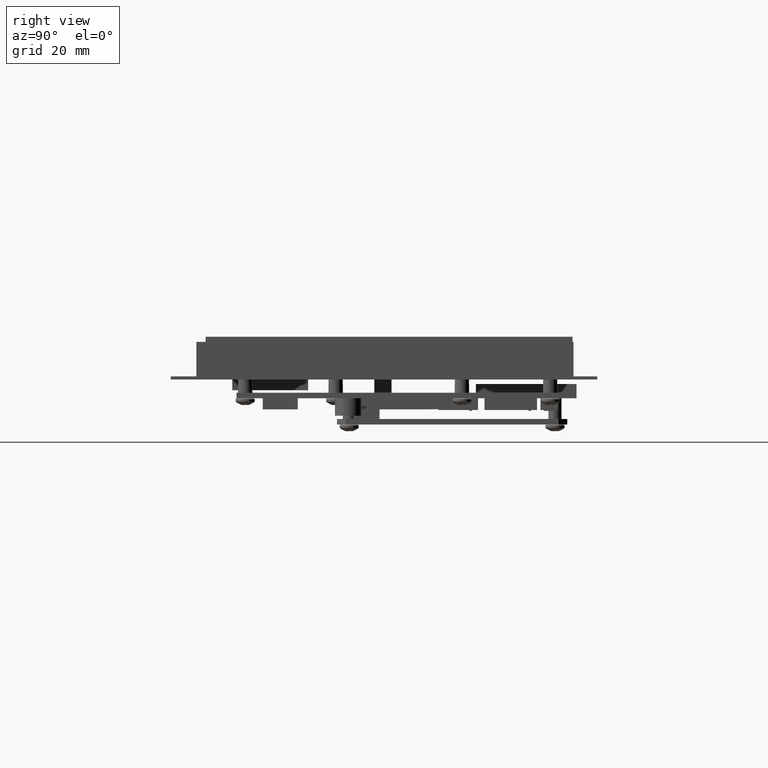
[diagram: clean part render]
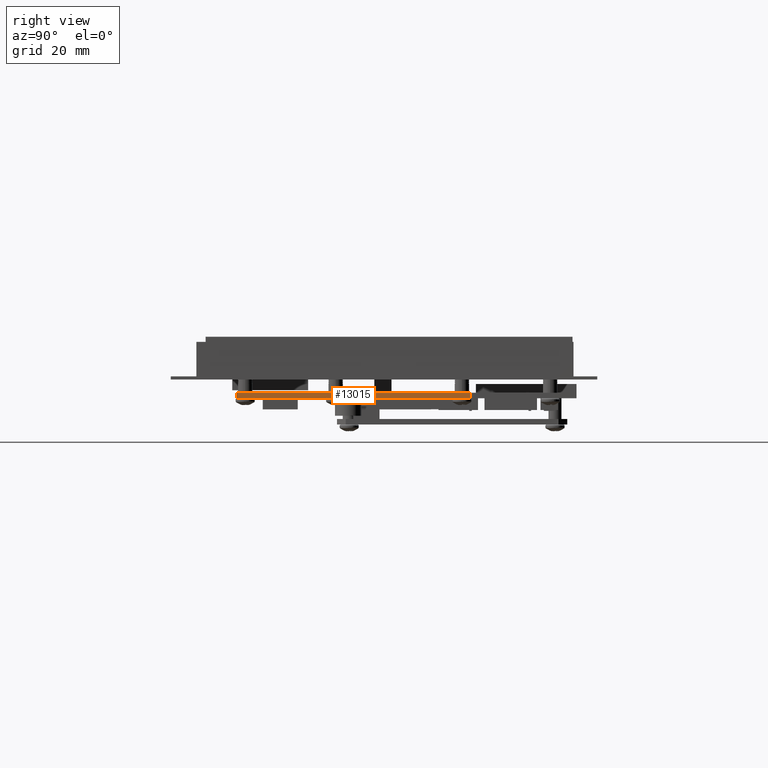
[diagram: same view with one face highlighted and labeled with its STEP entity id]
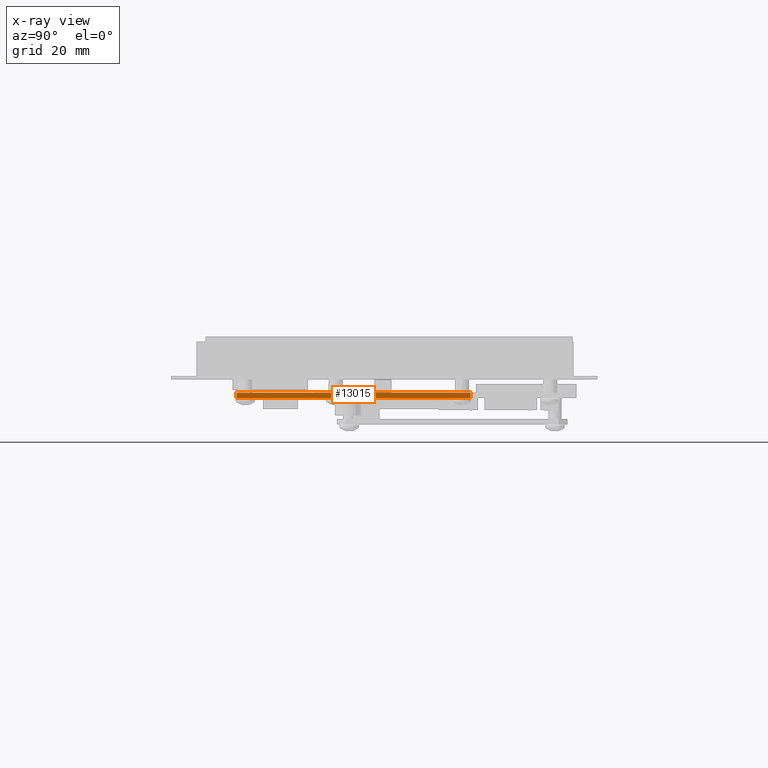
[diagram: x-ray of the same camera — body ghosted, the highlighted face saturated]
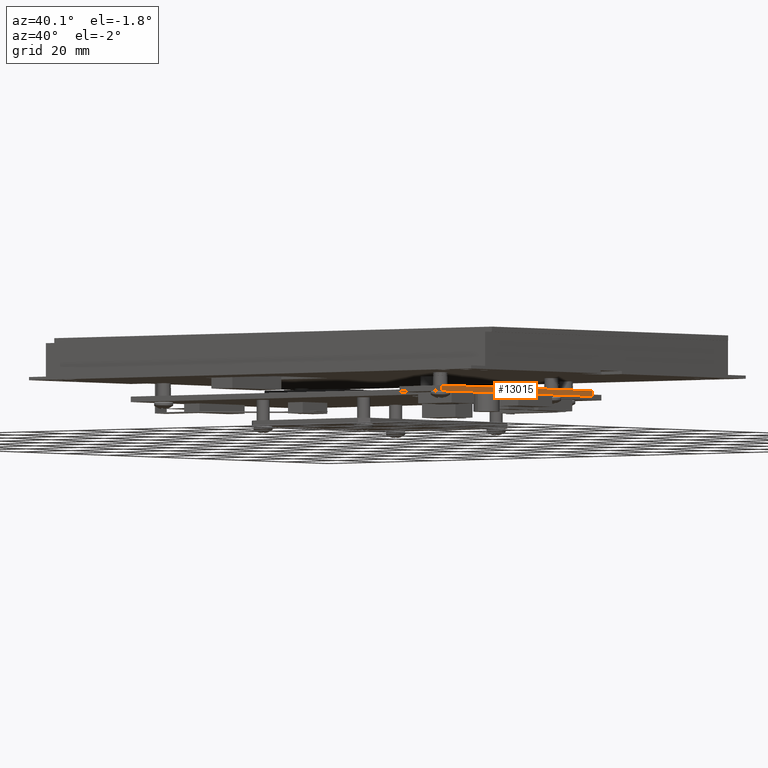
[diagram: same view with one face highlighted and labeled with its STEP entity id]
A machine part, right view. The second image highlights one B-rep face of the part: STEP entity #13015.
The next image is the same camera in x-ray: the body ghosted, the highlighted face saturated — about 0% of this face is hidden behind the body in this view.
A second angle (auxiliary view) of the same face is appended — the face is thin or edge-on in the first view.
In plain terms, the highlighted planar face has unit normal (-1, -0, -0).
Its self-contained STEP definition (entity closure, byte-faithful):
#885 = AXIS2_PLACEMENT_3D ( 'NONE', #2099, #2110, #2111 ) ;
#937 = VECTOR ( 'NONE', #2323, 39.37007874015748100 ) ;
#951 = VECTOR ( 'NONE', #2366, 39.37007874015748100 ) ;
#953 = VECTOR ( 'NONE', #2364, 39.37007874015748100 ) ;
#955 = VECTOR ( 'NONE', #2369, 39.37007874015748100 ) ;
#2099 = CARTESIAN_POINT ( 'NONE',  ( 0.3125000000000000000, 0.06300000000000001400, -1.337499999999999900 ) ) ;
#2107 = FACE_OUTER_BOUND ( 'NONE', #13346, .T. ) ;
#2108 = PLANE ( 'NONE',  #885 ) ;
#2110 = DIRECTION ( 'NONE',  ( -1.000000000000000000, 2.430865342914508500E-063, -5.106257932082734000E-017 ) ) ;
#2111 = DIRECTION ( 'NONE',  ( -5.106257932082734000E-017, 7.395570986446985700E-032, 1.000000000000000000 ) ) ;
#2321 = LINE ( 'NONE', #2322, #937 ) ;
#2322 = CARTESIAN_POINT ( 'NONE',  ( 0.3125000000000000000, 0.06300000000000001400, -1.337499999999999900 ) ) ;
#2323 = DIRECTION ( 'NONE',  ( 5.106257932082734000E-017, -7.395570986446985700E-032, -1.000000000000000000 ) ) ;
#2352 = LINE ( 'NONE', #2365, #951 ) ;
#2362 = LINE ( 'NONE', #2363, #953 ) ;
#2363 = CARTESIAN_POINT ( 'NONE',  ( 0.3125000000000000000, 0.06299999999999998700, 1.337499999999999900 ) ) ;
#2364 = DIRECTION ( 'NONE',  ( 0.0000000000000000000, -1.000000000000000000, 0.0000000000000000000 ) ) ;
#2365 = CARTESIAN_POINT ( 'NONE',  ( 0.3125000000000000000, 0.0000000000000000000, -1.337499999999999900 ) ) ;
#2366 = DIRECTION ( 'NONE',  ( 5.106257932082734000E-017, -7.395570986446985700E-032, -1.000000000000000000 ) ) ;
#2367 = LINE ( 'NONE', #2368, #955 ) ;
#2368 = CARTESIAN_POINT ( 'NONE',  ( 0.3125000000000000000, 0.06300000000000001400, -1.337499999999999900 ) ) ;
#2369 = DIRECTION ( 'NONE',  ( 0.0000000000000000000, -1.000000000000000000, 0.0000000000000000000 ) ) ;
#8645 = CARTESIAN_POINT ( 'NONE',  ( 0.3125000000000000000, 0.06299999999999998700, 1.337499999999999900 ) ) ;
#8707 = CARTESIAN_POINT ( 'NONE',  ( 0.3125000000000000000, 0.0000000000000000000, 1.337499999999999900 ) ) ;
#8714 = CARTESIAN_POINT ( 'NONE',  ( 0.3125000000000000000, 0.0000000000000000000, -1.337499999999999900 ) ) ;
#9241 = CARTESIAN_POINT ( 'NONE',  ( 0.3125000000000000000, 0.06300000000000001400, -1.337499999999999900 ) ) ;
#13015 = ADVANCED_FACE ( 'NONE', ( #2107 ), #2108, .F. ) ;
#13058 = EDGE_CURVE ( 'NONE', #16281, #16350, #2321, .T. ) ;
#13071 = EDGE_CURVE ( 'NONE', #16281, #16327, #2362, .T. ) ;
#13072 = EDGE_CURVE ( 'NONE', #16327, #16334, #2352, .T. ) ;
#13073 = EDGE_CURVE ( 'NONE', #16350, #16334, #2367, .T. ) ;
#13346 = EDGE_LOOP ( 'NONE', ( #13965, #13966, #13967, #13968 ) ) ;
#13965 = ORIENTED_EDGE ( 'NONE', *, *, #13072, .T. ) ;
#13966 = ORIENTED_EDGE ( 'NONE', *, *, #13073, .F. ) ;
#13967 = ORIENTED_EDGE ( 'NONE', *, *, #13058, .F. ) ;
#13968 = ORIENTED_EDGE ( 'NONE', *, *, #13071, .T. ) ;
#16281 = VERTEX_POINT ( 'NONE', #8645 ) ;
#16327 = VERTEX_POINT ( 'NONE', #8707 ) ;
#16334 = VERTEX_POINT ( 'NONE', #8714 ) ;
#16350 = VERTEX_POINT ( 'NONE', #9241 ) ;